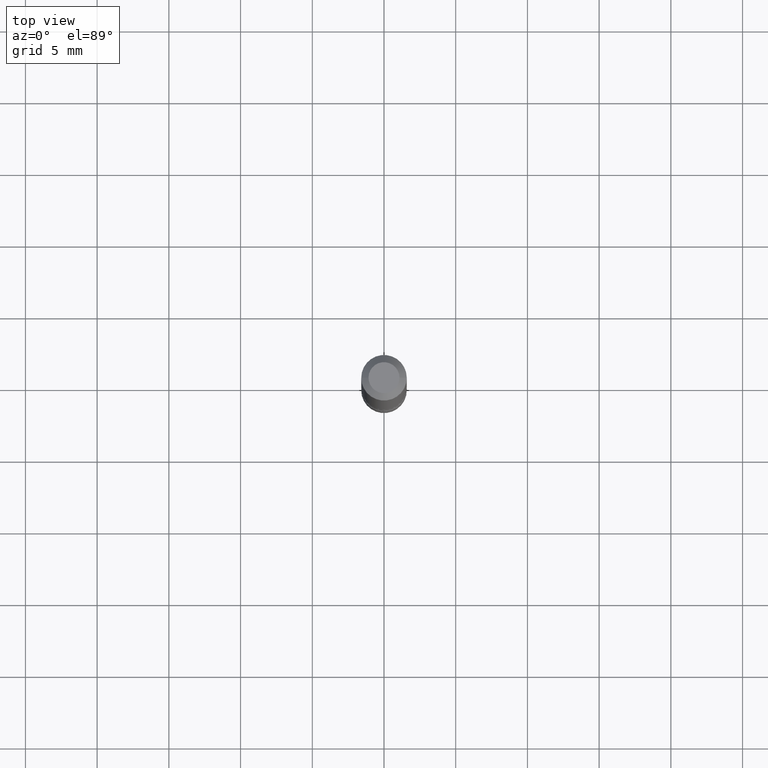
[diagram: clean part render]
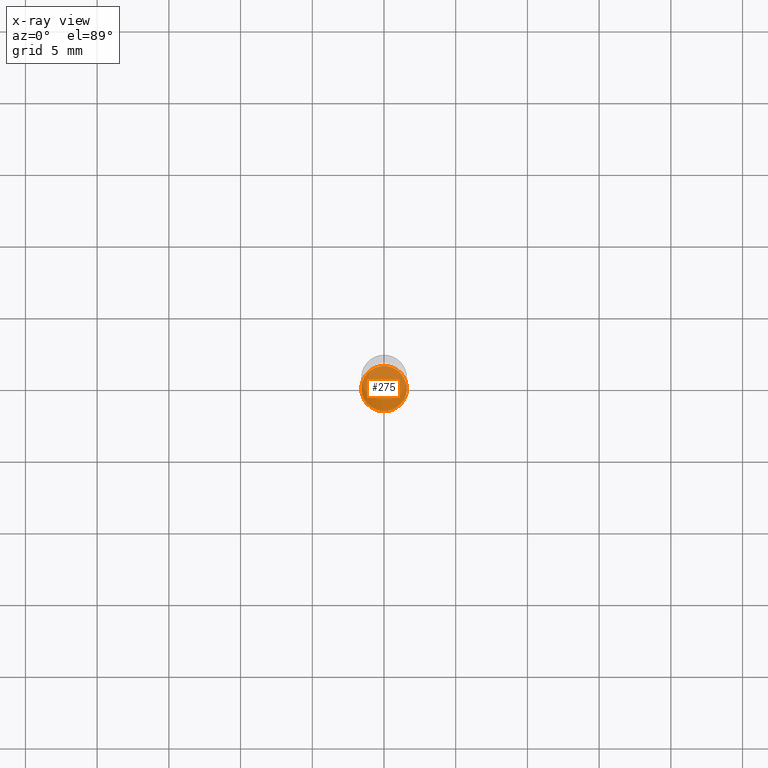
[diagram: x-ray — body ghosted, one internal face saturated and labeled with its STEP entity id]
A machine part, top view, then the same camera in x-ray: the body is ghosted and one INTERNAL B-rep face — a face not visible from any outside direction — is saturated and labeled: STEP entity #275.
In plain terms, the highlighted planar face has unit normal (0, -0, -1).
Its self-contained STEP definition (entity closure, byte-faithful):
#7 = DIRECTION ( 'NONE',  ( 1.000000000000000000, -6.982962677686271444E-15, 0.000000000000000000 ) ) ;
#23 = FACE_OUTER_BOUND ( 'NONE', #405, .T. ) ;
#27 = CARTESIAN_POINT ( 'NONE',  ( -6.403209434462905426E-29, -2.140844110749520751E-14, -1.749999999999998890 ) ) ;
#33 = EDGE_CURVE ( 'NONE', #145, #418, #373, .T. ) ;
#40 = CARTESIAN_POINT ( 'NONE',  ( -0.06250000000000062450, -6.084980893786609222E-15, -1.749999999999999112 ) ) ;
#41 = CARTESIAN_POINT ( 'NONE',  ( 4.279570410823987363E-29, -6.110092342975501516E-15, -1.749999999999999112 ) ) ;
#45 = ORIENTED_EDGE ( 'NONE', *, *, #33, .T. ) ;
#49 = CARTESIAN_POINT ( 'NONE',  ( 4.279570410823987363E-29, -6.110092342975501516E-15, -1.749999999999999112 ) ) ;
#86 = DIRECTION ( 'NONE',  ( -1.000000000000000000, 6.982962677686265922E-15, -4.876176775795935793E-29 ) ) ;
#91 = CIRCLE ( 'NONE', #221, 0.06250000000000062450 ) ;
#145 = VERTEX_POINT ( 'NONE', #40 ) ;
#221 = AXIS2_PLACEMENT_3D ( 'NONE', #49, #291, #414 ) ;
#245 = EDGE_CURVE ( 'NONE', #418, #145, #91, .T. ) ;
#275 = ADVANCED_FACE ( 'NONE', ( #23 ), #319, .F. ) ;
#291 = DIRECTION ( 'NONE',  ( -2.445468806185136597E-29, 3.491481338843145583E-15, 1.000000000000000000 ) ) ;
#319 = PLANE ( 'NONE',  #331 ) ;
#331 = AXIS2_PLACEMENT_3D ( 'NONE', #27, #535, #86 ) ;
#373 = CIRCLE ( 'NONE', #453, 0.06250000000000062450 ) ;
#393 = DIRECTION ( 'NONE',  ( -2.445468806185136597E-29, 3.491481338843145583E-15, 1.000000000000000000 ) ) ;
#405 = EDGE_LOOP ( 'NONE', ( #425, #45 ) ) ;
#414 = DIRECTION ( 'NONE',  ( 1.000000000000000000, -6.982962677686271444E-15, 0.000000000000000000 ) ) ;
#418 = VERTEX_POINT ( 'NONE', #456 ) ;
#425 = ORIENTED_EDGE ( 'NONE', *, *, #245, .T. ) ;
#453 = AXIS2_PLACEMENT_3D ( 'NONE', #41, #393, #7 ) ;
#456 = CARTESIAN_POINT ( 'NONE',  ( 0.06250000000000062450, -6.546527510330897918E-15, -1.749999999999999112 ) ) ;
#535 = DIRECTION ( 'NONE',  ( 2.438088387897960049E-29, -3.491481338843145188E-15, -1.000000000000000000 ) ) ;